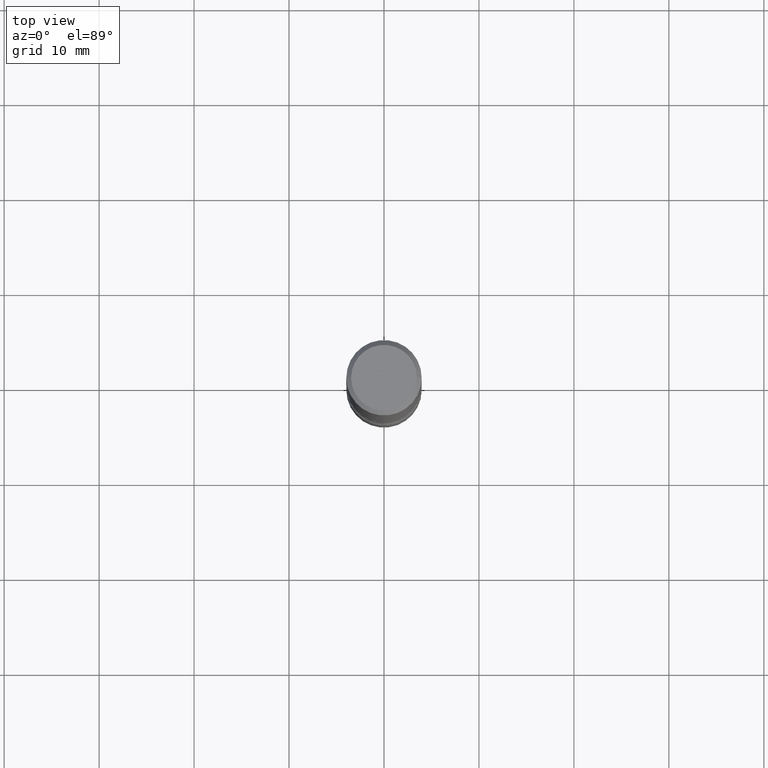
[diagram: clean part render]
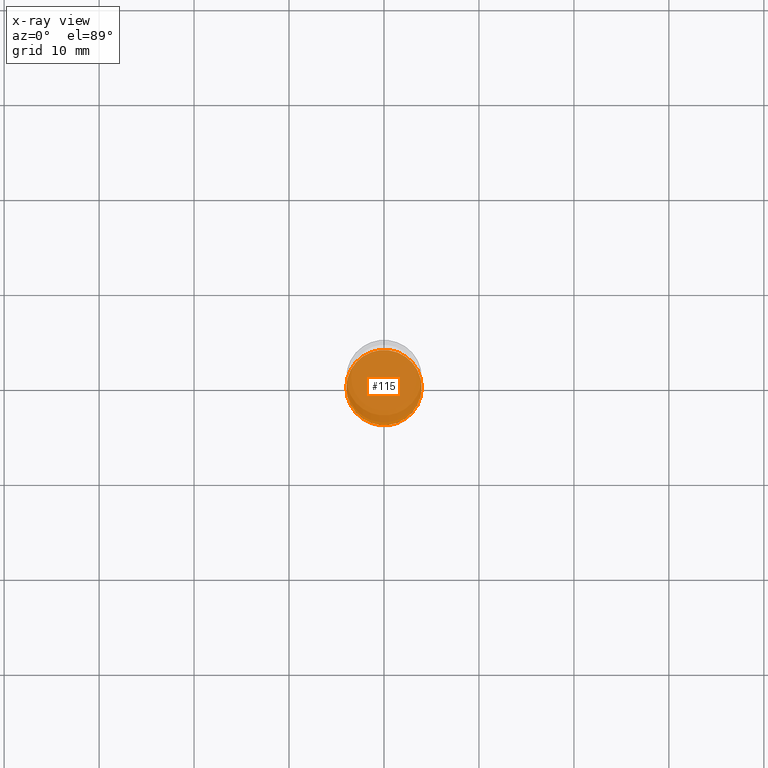
[diagram: x-ray — body ghosted, one internal face saturated and labeled with its STEP entity id]
A machine part, top view, then the same camera in x-ray: the body is ghosted and one INTERNAL B-rep face — a face not visible from any outside direction — is saturated and labeled: STEP entity #115.
In plain terms, the highlighted planar face has unit normal (0, -0, -1).
Its self-contained STEP definition (entity closure, byte-faithful):
#30 = EDGE_CURVE ( 'NONE', #484, #266, #393, .T. ) ;
#44 = CARTESIAN_POINT ( 'NONE',  ( -0.1562500000000001110, -8.116016413267856641E-15, -2.375000000000000444 ) ) ;
#53 = CARTESIAN_POINT ( 'NONE',  ( 5.807988414689700538E-29, -8.292268179752471696E-15, -2.375000000000000444 ) ) ;
#71 = FACE_OUTER_BOUND ( 'NONE', #342, .T. ) ;
#111 = CIRCLE ( 'NONE', #196, 0.1562500000000001110 ) ;
#115 = ADVANCED_FACE ( 'NONE', ( #71 ), #158, .F. ) ;
#124 = EDGE_CURVE ( 'NONE', #266, #484, #111, .T. ) ;
#144 = ORIENTED_EDGE ( 'NONE', *, *, #30, .T. ) ;
#158 = PLANE ( 'NONE',  #374 ) ;
#193 = DIRECTION ( 'NONE',  ( 1.000000000000000000, -6.982962677686270655E-15, 0.000000000000000000 ) ) ;
#196 = AXIS2_PLACEMENT_3D ( 'NONE', #365, #455, #408 ) ;
#201 = DIRECTION ( 'NONE',  ( -1.000000000000000000, 6.982962677686265922E-15, -4.876176775795935793E-29 ) ) ;
#266 = VERTEX_POINT ( 'NONE', #44 ) ;
#276 = ORIENTED_EDGE ( 'NONE', *, *, #124, .T. ) ;
#285 = CARTESIAN_POINT ( 'NONE',  ( 5.807988414689700538E-29, -8.292268179752471696E-15, -2.375000000000000444 ) ) ;
#342 = EDGE_LOOP ( 'NONE', ( #144, #276 ) ) ;
#365 = CARTESIAN_POINT ( 'NONE',  ( 5.807988414689700538E-29, -8.292268179752471696E-15, -2.375000000000000444 ) ) ;
#374 = AXIS2_PLACEMENT_3D ( 'NONE', #285, #447, #201 ) ;
#393 = CIRCLE ( 'NONE', #405, 0.1562500000000001110 ) ;
#405 = AXIS2_PLACEMENT_3D ( 'NONE', #53, #439, #193 ) ;
#408 = DIRECTION ( 'NONE',  ( 1.000000000000000000, -6.982962677686270655E-15, 0.000000000000000000 ) ) ;
#439 = DIRECTION ( 'NONE',  ( -2.445468806185136597E-29, 3.491481338843145583E-15, 1.000000000000000000 ) ) ;
#447 = DIRECTION ( 'NONE',  ( 2.438088387897960049E-29, -3.491481338843145188E-15, -1.000000000000000000 ) ) ;
#455 = DIRECTION ( 'NONE',  ( -2.445468806185136597E-29, 3.491481338843145583E-15, 1.000000000000000000 ) ) ;
#484 = VERTEX_POINT ( 'NONE', #545 ) ;
#545 = CARTESIAN_POINT ( 'NONE',  ( 0.1562500000000001110, -9.383356098140953236E-15, -2.375000000000000444 ) ) ;